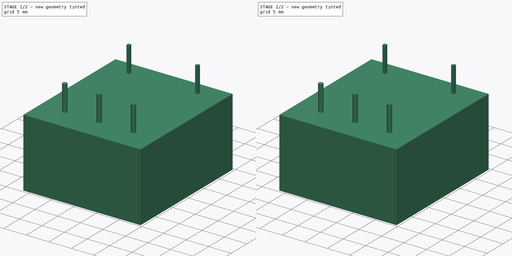
[diagram: build sequence overview — one tinted view per stage of 2, left to right]
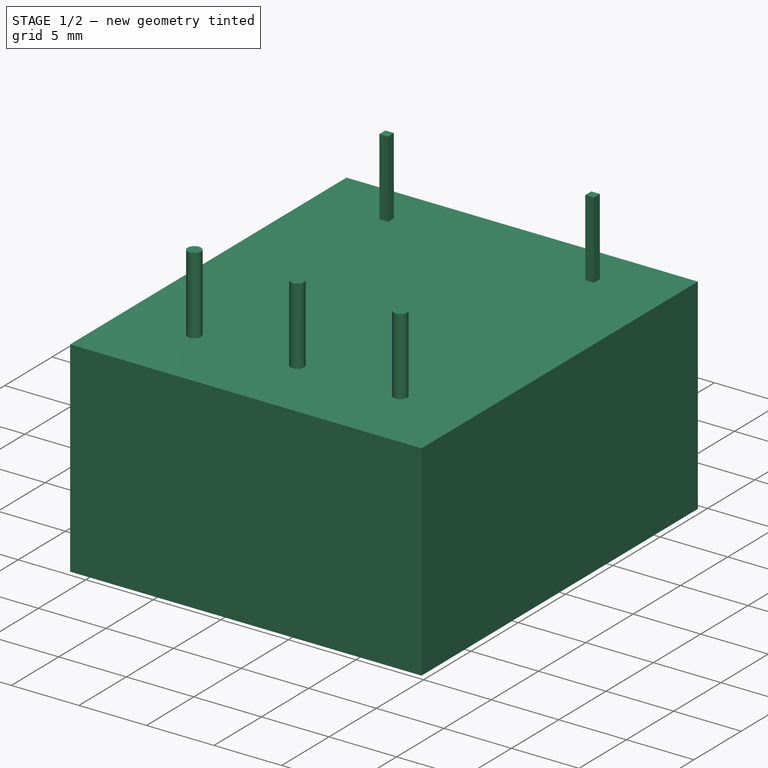
[diagram: stage 1 of 2 — iso view after this stage's code; geometry added in this stage tinted green]
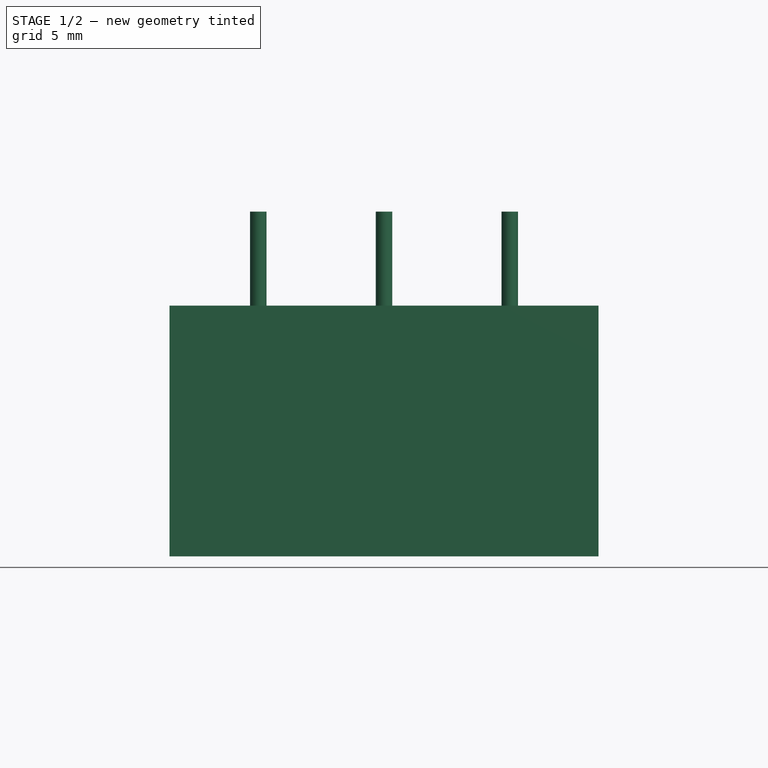
[diagram: stage 1 of 2 — front view after this stage's code; geometry added in this stage tinted green]
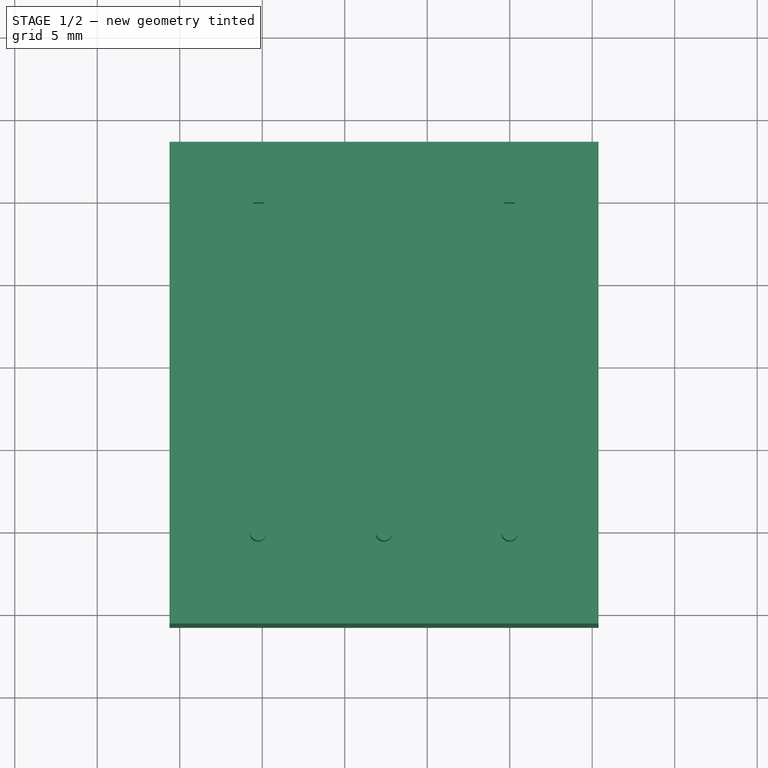
[diagram: stage 1 of 2 — top view after this stage's code; geometry added in this stage tinted green]
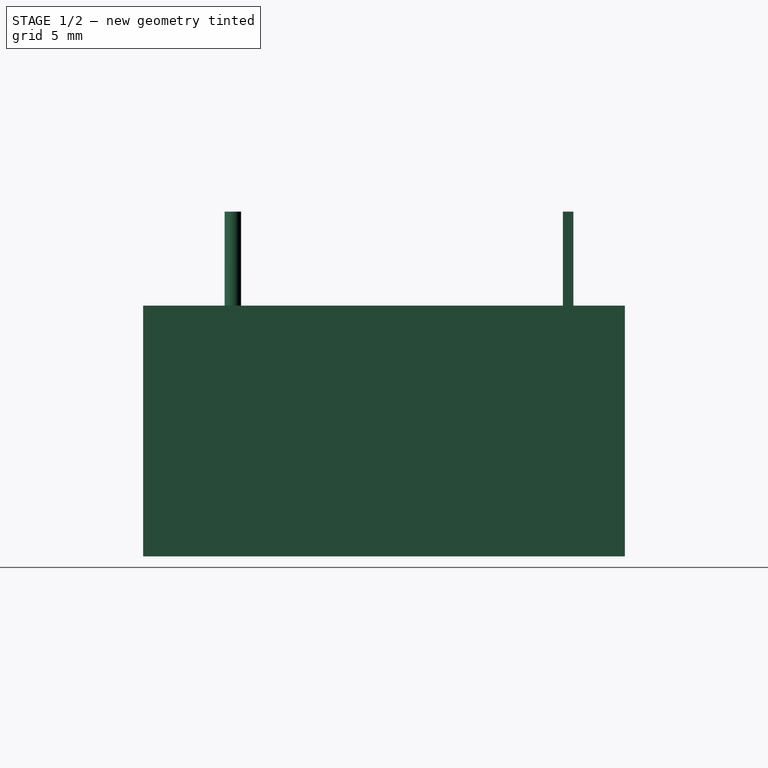
[diagram: stage 1 of 2 — right view after this stage's code; geometry added in this stage tinted green]
FCSTD DOCUMENT  (FreeCAD 0.14R3702 (Git))
Label: LV25-P
License: All rights reserved
LicenseURL: http://en.wikipedia.org/wiki/All_rights_reserved
objects: Sketcher::SketchObject×2, Part::Extrusion×2, Part::Fuse×1
note: 5 computed .brp shape members not serialized (recipe doc carries the construction recipe); baked Part::Feature solids carry a one-line shape summary decoded from their .brp

FEATURE [Sketcher::SketchObject] Sketch
  sketch-geometry (4):
    g0: LineSegment StartX=-20.62 StartY=3.44 StartZ=0 EndX=5.38 EndY=3.44 EndZ=0
    g1: LineSegment StartX=5.38 StartY=3.44 StartZ=0 EndX=5.38 EndY=-25.76 EndZ=0
    g2: LineSegment StartX=5.38 StartY=-25.76 StartZ=0 EndX=-20.62 EndY=-25.76 EndZ=0
    g3: LineSegment StartX=-20.62 StartY=-25.76 StartZ=0 EndX=-20.62 EndY=3.44 EndZ=0
  constraints (12):
    c: Coincident(g0,g1)
    c: Coincident(g1,g2)
    c: Coincident(g2,g3)
    c: Coincident(g3,g0)
    c: Horizontal(g0)
    c: Horizontal(g2)
    c: Vertical(g1)
    c: Vertical(g3)
    c: DistanceX(g0) = 26
    c: DistanceY(g1) = -29.2
    c: DistanceY(g-1,g0) = 3.44
    c: DistanceX(g-1,g0) = 5.38
FEATURE [Sketcher::SketchObject] Sketch001
  sketch-geometry (12):
    g0: Circle CenterX=-15.24 CenterY=-20.32 CenterZ=0 NormalX=0 NormalY=0 NormalZ=1 Radius=0.5
    g1: Circle CenterX=-7.62 CenterY=-20.32 CenterZ=0 NormalX=0 NormalY=0 NormalZ=1 Radius=0.5
    g2: Circle CenterX=0 CenterY=-20.32 CenterZ=0 NormalX=0 NormalY=0 NormalZ=1 Radius=0.5
    g3: LineSegment StartX=-0.3175 StartY=0.3175 StartZ=0 EndX=0.3175 EndY=0.3175 EndZ=0
    g4: LineSegment StartX=0.3175 StartY=0.3175 StartZ=0 EndX=0.3175 EndY=-0.3175 EndZ=0
    g5: LineSegment StartX=0.3175 StartY=-0.3175 StartZ=0 EndX=-0.3175 EndY=-0.3175 EndZ=0
    g6: LineSegment StartX=-0.3175 StartY=-0.3175 StartZ=0 EndX=-0.3175 EndY=0.3175 EndZ=0
    g7: GeomPoint [constr] X=-15.24 Y=0 Z=0
    g8: LineSegment StartX=-15.5575 StartY=0.3175 StartZ=0 EndX=-14.9225 EndY=0.3175 EndZ=0
    g9: LineSegment StartX=-14.9225 StartY=0.3175 StartZ=0 EndX=-14.9225 EndY=-0.3175 EndZ=0
    g10: LineSegment StartX=-14.9225 StartY=-0.3175 StartZ=0 EndX=-15.5575 EndY=-0.3175 EndZ=0
    g11: LineSegment StartX=-15.5575 StartY=-0.3175 StartZ=0 EndX=-15.5575 EndY=0.3175 EndZ=0
  constraints (33):
    c: DistanceX(g0,g1) = 7.62
    c: DistanceX(g1,g2) = 7.62
    c: Radius(g2) = 0.5
    c: Equal(g2,g1)
    c: Equal(g2,g0)
    c: DistanceY(g0,g1) = 0
    c: DistanceY(g1,g2) = 0
    c: Coincident(g3,g4)
    c: Coincident(g4,g5)
    c: Coincident(g5,g6)
    c: Coincident(g6,g3)
    c: Horizontal(g3)
    c: Horizontal(g5)
    c: Vertical(g4)
    c: Vertical(g6)
    c: Symmetric(g3,g5,g-1)
    c: Equal(g4,g3)
    c: DistanceX(g3) = 0.635
    c: DistanceY(g-1,g2) = -20.32
    c: PointOnObject(g2,g-2)
    c: PointOnObject(g7,g-1)
    c: DistanceX(g-1,g7) = -15.24
    c: Coincident(g8,g9)
    c: Coincident(g9,g10)
    c: Coincident(g10,g11)
    c: Coincident(g11,g8)
    c: Horizontal(g8)
    c: Horizontal(g10)
    c: Vertical(g9)
    c: Vertical(g11)
    c: Symmetric(g8,g9,g7)
    c: Equal(g8,g9)
    c: Equal(g9,g6)
FEATURE [Part::Extrusion] Extrude001
  Base = -> Sketch001
  Dir = (0,0,5.7)
  Solid = true
FEATURE [Part::Extrusion] Extrude
  Base = -> Sketch
  Dir = (0,0,-15.2)
  Solid = true
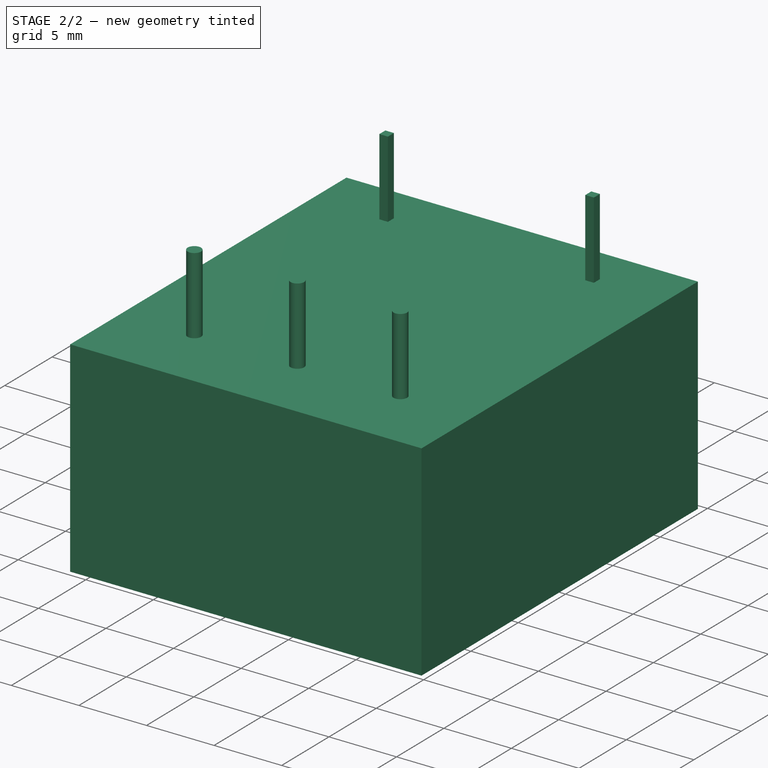
[diagram: stage 2 of 2 — iso view after this stage's code; geometry added in this stage tinted green]
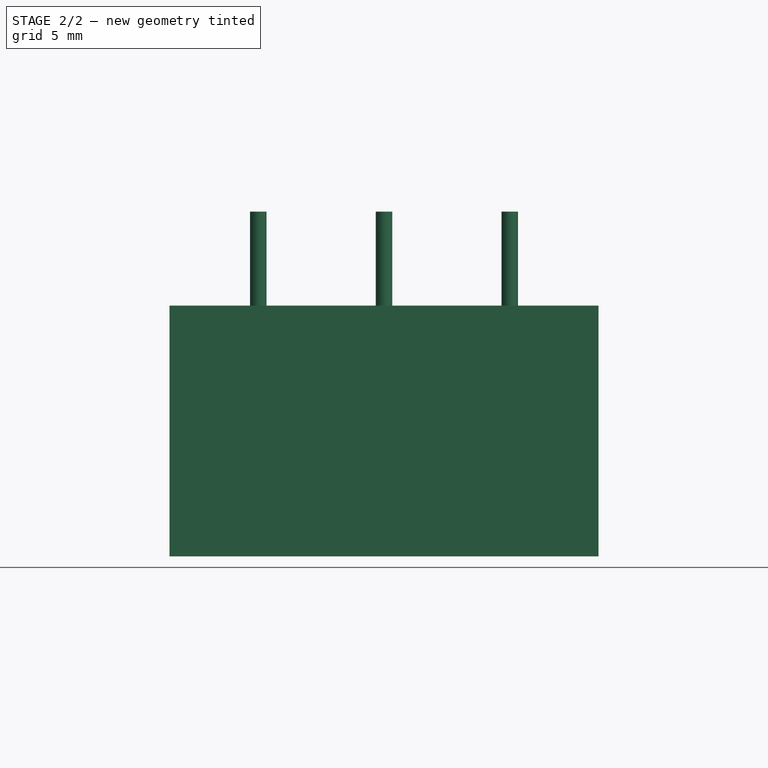
[diagram: stage 2 of 2 — front view after this stage's code; geometry added in this stage tinted green]
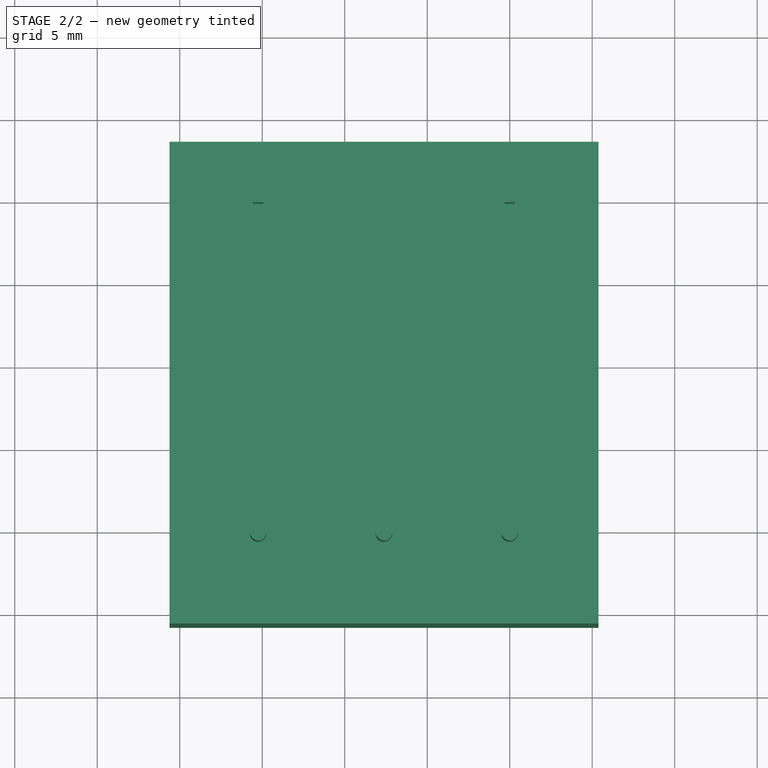
[diagram: stage 2 of 2 — top view after this stage's code; geometry added in this stage tinted green]
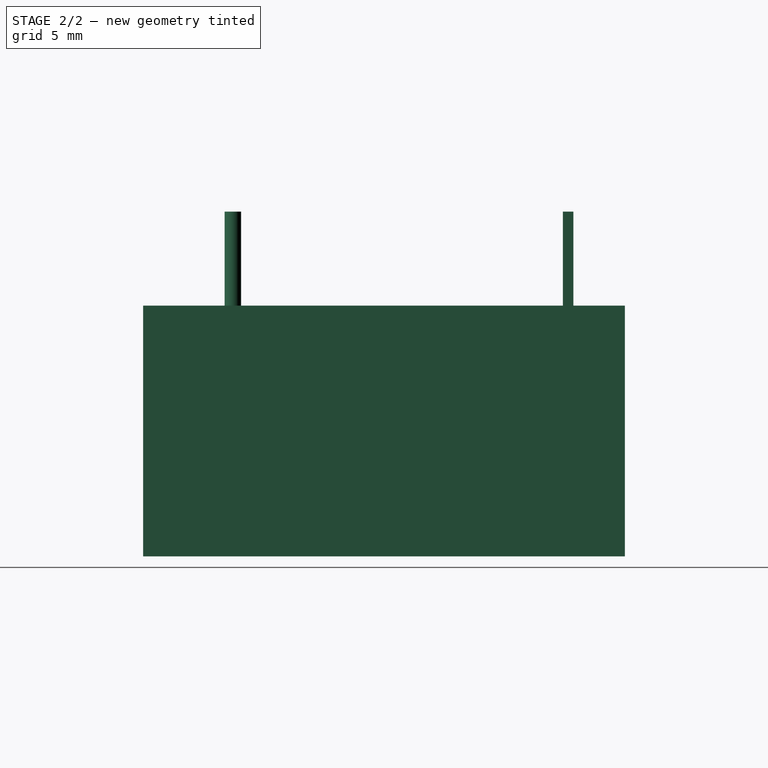
[diagram: stage 2 of 2 — right view after this stage's code; geometry added in this stage tinted green]
FEATURE [Part::Fuse] Fusion
  Base = -> Extrude001
  Tool = -> Extrude
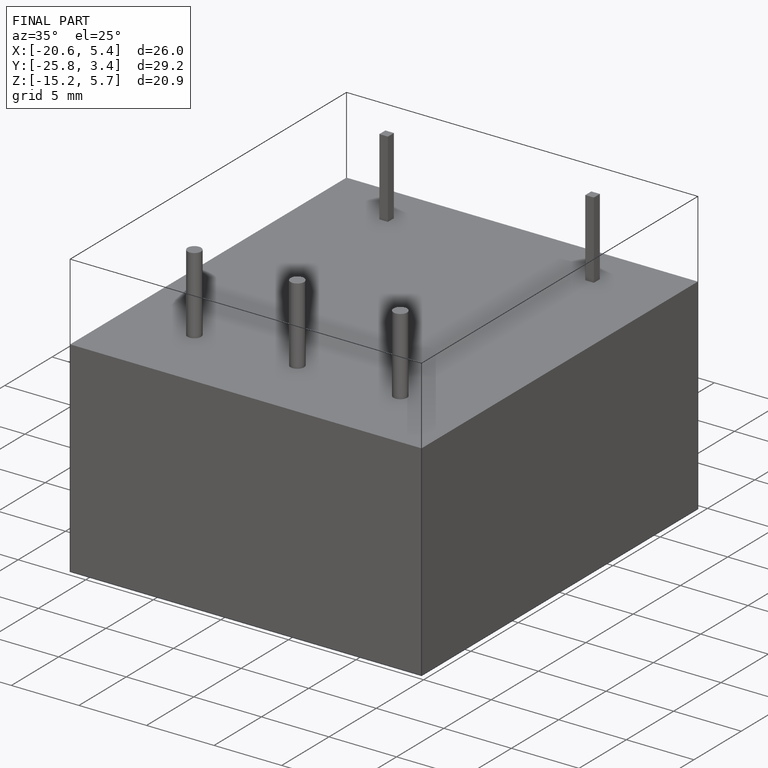
[diagram: finished part — iso view with bounding-box wireframe]
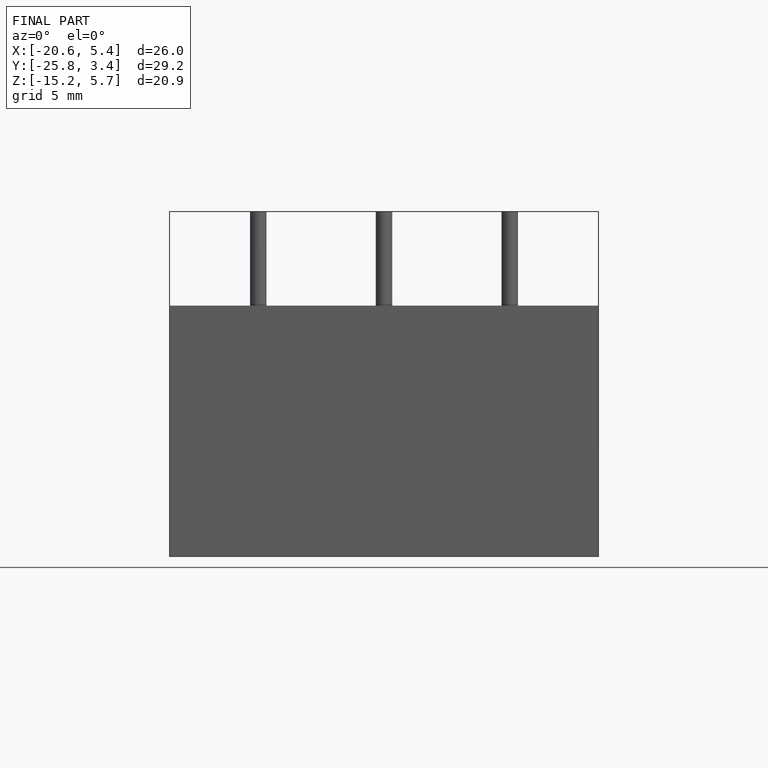
[diagram: finished part — front view with bounding-box wireframe]
